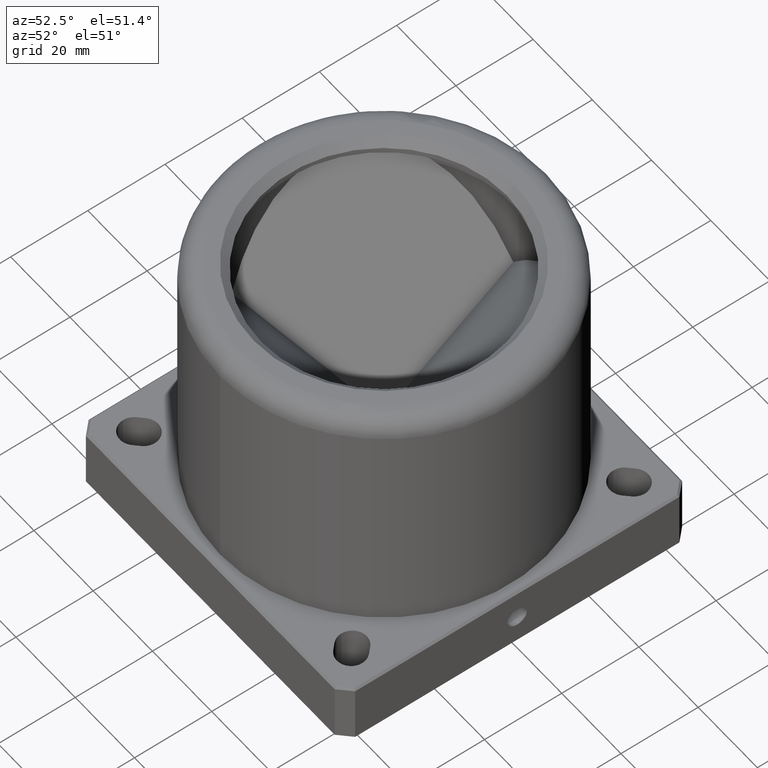
[diagram: clean part render]
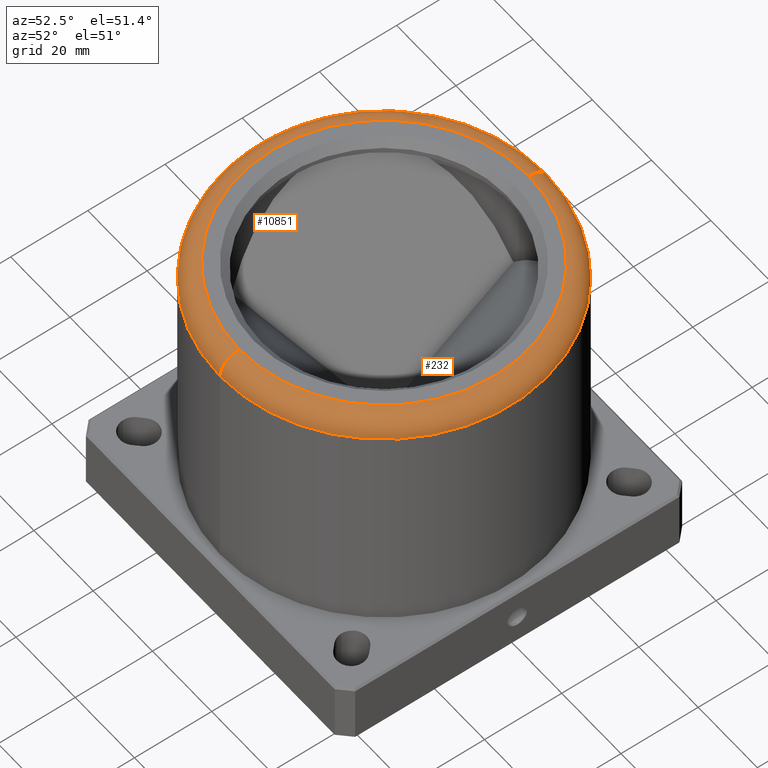
[diagram: same view with one multi-face feature highlighted, each face labeled with its STEP entity id]
A machine part, auxiliary view. The highlighted faces form ONE feature: a constant-radius fillet chain: 2 tangent blend faces with common blend radius 5 mm. The faces share edges in the B-rep.
Their STEP definitions:
[1] entity #232 (Torus):
#232 = ADVANCED_FACE ( 'NONE', ( #2560 ), #11063, .T. ) ;
#455 = CARTESIAN_POINT ( 'NONE',  ( 1.600526984571186100E-013, -42.50000000000000000, 75.00000000000000000 ) ) ;
#812 = VERTEX_POINT ( 'NONE', #2987 ) ;
#1485 = EDGE_CURVE ( 'NONE', #10906, #812, #1720, .T. ) ;
#1720 = CIRCLE ( 'NONE', #11137, 4.999999999999997300 ) ;
#1970 = DIRECTION ( 'NONE',  ( -3.747002708109905700E-015, 1.000000000000000000, 3.120006509907322100E-031 ) ) ;
#2055 = DIRECTION ( 'NONE',  ( 8.326672684688669100E-017, 0.0000000000000000000, 1.000000000000000000 ) ) ;
#2214 = ORIENTED_EDGE ( 'NONE', *, *, #8807, .F. ) ;
#2560 = FACE_OUTER_BOUND ( 'NONE', #6906, .T. ) ;
#2843 = DIRECTION ( 'NONE',  ( -8.326672684688669100E-017, -0.0000000000000000000, -1.000000000000000000 ) ) ;
#2974 = CARTESIAN_POINT ( 'NONE',  ( 1.484386497403277400E-013, -37.50000000000000000, 80.00000000000000000 ) ) ;
#2987 = CARTESIAN_POINT ( 'NONE',  ( -1.368473061244833000E-013, 37.50000000000000000, 80.00000000000000000 ) ) ;
#3046 = CARTESIAN_POINT ( 'NONE',  ( 3.665295429638160400E-015, 2.316515400426250000E-015, 80.00000000000000000 ) ) ;
#3961 = DIRECTION ( 'NONE',  ( -3.747002708109905700E-015, 1.000000000000000000, 0.0000000000000000000 ) ) ;
#4407 = AXIS2_PLACEMENT_3D ( 'NONE', #4743, #11071, #5622 ) ;
#4686 = ORIENTED_EDGE ( 'NONE', *, *, #1485, .T. ) ;
#4743 = CARTESIAN_POINT ( 'NONE',  ( 1.391691378527226200E-013, -37.50000000000000000, 75.00000000000000000 ) ) ;
#5245 = AXIS2_PLACEMENT_3D ( 'NONE', #8223, #2843, #9178 ) ;
#5396 = CARTESIAN_POINT ( 'NONE',  ( 3.248961795403726700E-015, 2.316515400426250000E-015, 75.00000000000000000 ) ) ;
#5622 = DIRECTION ( 'NONE',  ( 3.624538028195171300E-015, -1.000000000000000000, 0.0000000000000000000 ) ) ;
#6054 = VERTEX_POINT ( 'NONE', #455 ) ;
#6251 = EDGE_CURVE ( 'NONE', #10906, #6054, #8670, .T. ) ;
#6906 = EDGE_LOOP ( 'NONE', ( #2214, #11454, #4686, #11717 ) ) ;
#7398 = CIRCLE ( 'NONE', #7650, 37.50000000000000000 ) ;
#7650 = AXIS2_PLACEMENT_3D ( 'NONE', #3046, #9371, #3961 ) ;
#7881 = CARTESIAN_POINT ( 'NONE',  ( -1.372636397587177300E-013, 37.50000000000000000, 75.00000000000000000 ) ) ;
#7950 = DIRECTION ( 'NONE',  ( 1.000000000000000000, 3.747002708109905700E-015, -8.326672684688669100E-017 ) ) ;
#8041 = DIRECTION ( 'NONE',  ( -3.747002708109908800E-015, 1.000000000000000000, 0.0000000000000000000 ) ) ;
#8223 = CARTESIAN_POINT ( 'NONE',  ( 3.248961795403726700E-015, 2.316515400426250000E-015, 75.00000000000000000 ) ) ;
#8670 = CIRCLE ( 'NONE', #5245, 42.50000000000000000 ) ;
#8807 = EDGE_CURVE ( 'NONE', #6054, #9951, #9248, .T. ) ;
#9178 = DIRECTION ( 'NONE',  ( -3.747002708109906500E-015, 1.000000000000000000, 0.0000000000000000000 ) ) ;
#9248 = CIRCLE ( 'NONE', #4407, 4.999999999999997300 ) ;
#9371 = DIRECTION ( 'NONE',  ( 8.326672684688669100E-017, 0.0000000000000000000, 1.000000000000000000 ) ) ;
#9917 = AXIS2_PLACEMENT_3D ( 'NONE', #5396, #2055, #1970 ) ;
#9951 = VERTEX_POINT ( 'NONE', #2974 ) ;
#10399 = EDGE_CURVE ( 'NONE', #9951, #812, #7398, .T. ) ;
#10469 = CARTESIAN_POINT ( 'NONE',  ( -1.636472806285996600E-013, 42.50000000000000000, 75.00000000000000000 ) ) ;
#10906 = VERTEX_POINT ( 'NONE', #10469 ) ;
#11063 = TOROIDAL_SURFACE ( 'NONE', #9917, 37.50000000000000000, 5.000000000000000000 ) ;
#11071 = DIRECTION ( 'NONE',  ( -1.000000000000000000, -3.624538028195170500E-015, 8.326672684688669100E-017 ) ) ;
#11137 = AXIS2_PLACEMENT_3D ( 'NONE', #7881, #7950, #8041 ) ;
#11454 = ORIENTED_EDGE ( 'NONE', *, *, #6251, .F. ) ;
#11717 = ORIENTED_EDGE ( 'NONE', *, *, #10399, .F. ) ;
[2] entity #10851 (Torus):
#277 = ORIENTED_EDGE ( 'NONE', *, *, #8807, .T. ) ;
#288 = AXIS2_PLACEMENT_3D ( 'NONE', #5854, #9501, #4087 ) ;
#427 = TOROIDAL_SURFACE ( 'NONE', #288, 37.50000000000000000, 5.000000000000000000 ) ;
#455 = CARTESIAN_POINT ( 'NONE',  ( 1.600526984571186100E-013, -42.50000000000000000, 75.00000000000000000 ) ) ;
#764 = ORIENTED_EDGE ( 'NONE', *, *, #1485, .F. ) ;
#812 = VERTEX_POINT ( 'NONE', #2987 ) ;
#1483 = DIRECTION ( 'NONE',  ( 8.326672684688669100E-017, 0.0000000000000000000, 1.000000000000000000 ) ) ;
#1485 = EDGE_CURVE ( 'NONE', #10906, #812, #1720, .T. ) ;
#1615 = CIRCLE ( 'NONE', #6088, 37.50000000000000000 ) ;
#1713 = EDGE_CURVE ( 'NONE', #6054, #10906, #6975, .T. ) ;
#1720 = CIRCLE ( 'NONE', #11137, 4.999999999999997300 ) ;
#2974 = CARTESIAN_POINT ( 'NONE',  ( 1.484386497403277400E-013, -37.50000000000000000, 80.00000000000000000 ) ) ;
#2987 = CARTESIAN_POINT ( 'NONE',  ( -1.368473061244833000E-013, 37.50000000000000000, 80.00000000000000000 ) ) ;
#3705 = FACE_OUTER_BOUND ( 'NONE', #4665, .T. ) ;
#4087 = DIRECTION ( 'NONE',  ( -3.747002708109905700E-015, 1.000000000000000000, 3.120006509907322100E-031 ) ) ;
#4383 = EDGE_CURVE ( 'NONE', #812, #9951, #1615, .T. ) ;
#4407 = AXIS2_PLACEMENT_3D ( 'NONE', #4743, #11071, #5622 ) ;
#4665 = EDGE_LOOP ( 'NONE', ( #9353, #277, #6286, #764 ) ) ;
#4743 = CARTESIAN_POINT ( 'NONE',  ( 1.391691378527226200E-013, -37.50000000000000000, 75.00000000000000000 ) ) ;
#5622 = DIRECTION ( 'NONE',  ( 3.624538028195171300E-015, -1.000000000000000000, 0.0000000000000000000 ) ) ;
#5854 = CARTESIAN_POINT ( 'NONE',  ( 3.248961795403726700E-015, 2.316515400426250000E-015, 75.00000000000000000 ) ) ;
#6054 = VERTEX_POINT ( 'NONE', #455 ) ;
#6088 = AXIS2_PLACEMENT_3D ( 'NONE', #6887, #1483, #7804 ) ;
#6286 = ORIENTED_EDGE ( 'NONE', *, *, #4383, .F. ) ;
#6431 = DIRECTION ( 'NONE',  ( -8.326672684688669100E-017, -0.0000000000000000000, -1.000000000000000000 ) ) ;
#6473 = CARTESIAN_POINT ( 'NONE',  ( 3.248961795403726700E-015, 2.316515400426250000E-015, 75.00000000000000000 ) ) ;
#6887 = CARTESIAN_POINT ( 'NONE',  ( 3.665295429638160400E-015, 2.316515400426250000E-015, 80.00000000000000000 ) ) ;
#6975 = CIRCLE ( 'NONE', #7224, 42.50000000000000000 ) ;
#7224 = AXIS2_PLACEMENT_3D ( 'NONE', #6473, #6431, #9061 ) ;
#7804 = DIRECTION ( 'NONE',  ( -3.747002708109905700E-015, 1.000000000000000000, 0.0000000000000000000 ) ) ;
#7881 = CARTESIAN_POINT ( 'NONE',  ( -1.372636397587177300E-013, 37.50000000000000000, 75.00000000000000000 ) ) ;
#7950 = DIRECTION ( 'NONE',  ( 1.000000000000000000, 3.747002708109905700E-015, -8.326672684688669100E-017 ) ) ;
#8041 = DIRECTION ( 'NONE',  ( -3.747002708109908800E-015, 1.000000000000000000, 0.0000000000000000000 ) ) ;
#8807 = EDGE_CURVE ( 'NONE', #6054, #9951, #9248, .T. ) ;
#9061 = DIRECTION ( 'NONE',  ( -3.747002708109906500E-015, 1.000000000000000000, 0.0000000000000000000 ) ) ;
#9248 = CIRCLE ( 'NONE', #4407, 4.999999999999997300 ) ;
#9353 = ORIENTED_EDGE ( 'NONE', *, *, #1713, .F. ) ;
#9501 = DIRECTION ( 'NONE',  ( 8.326672684688669100E-017, 0.0000000000000000000, 1.000000000000000000 ) ) ;
#9951 = VERTEX_POINT ( 'NONE', #2974 ) ;
#10469 = CARTESIAN_POINT ( 'NONE',  ( -1.636472806285996600E-013, 42.50000000000000000, 75.00000000000000000 ) ) ;
#10851 = ADVANCED_FACE ( 'NONE', ( #3705 ), #427, .T. ) ;
#10906 = VERTEX_POINT ( 'NONE', #10469 ) ;
#11071 = DIRECTION ( 'NONE',  ( -1.000000000000000000, -3.624538028195170500E-015, 8.326672684688669100E-017 ) ) ;
#11137 = AXIS2_PLACEMENT_3D ( 'NONE', #7881, #7950, #8041 ) ;